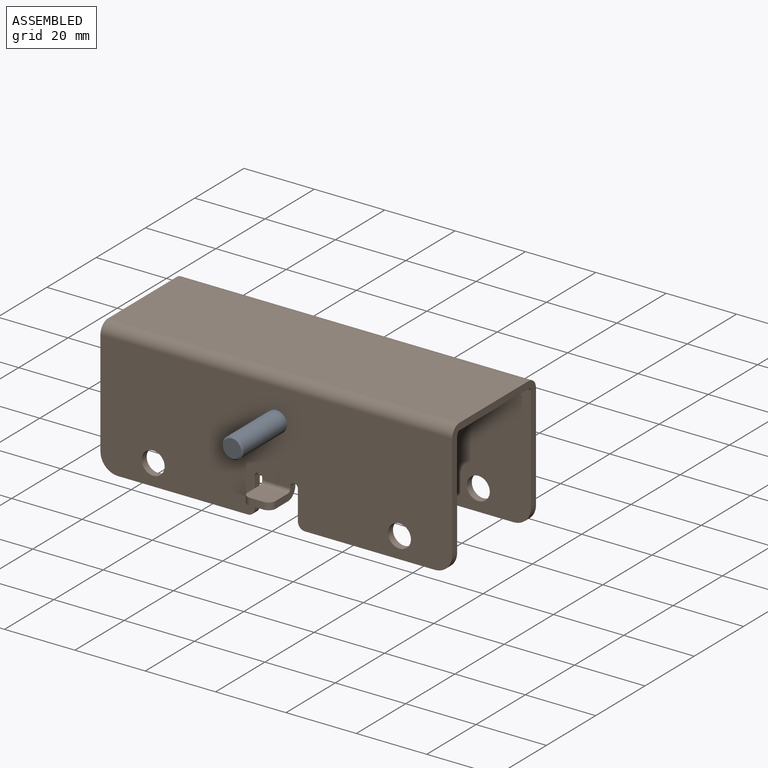
[diagram: assembled view]
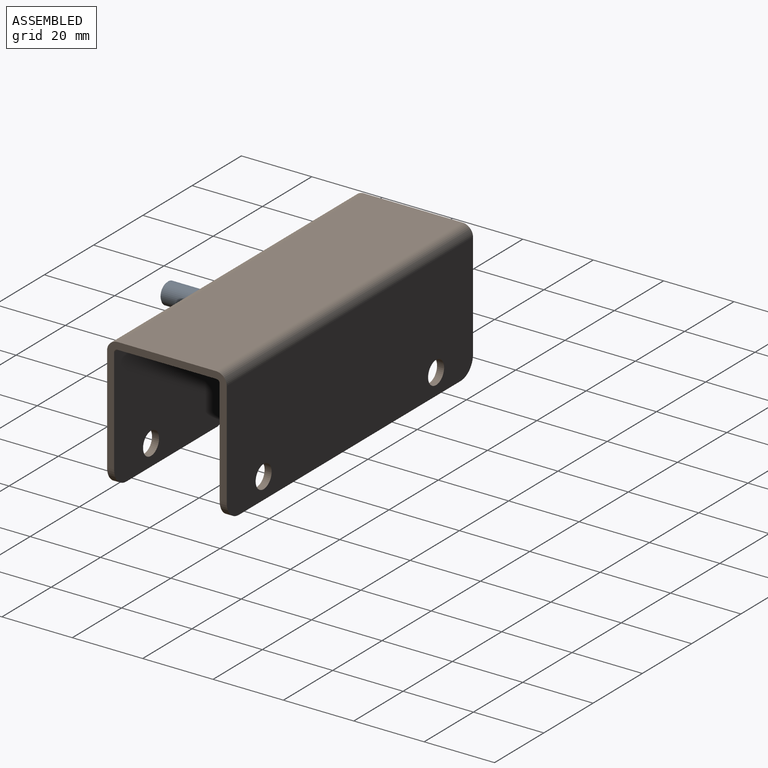
[diagram: assembled view, second angle]
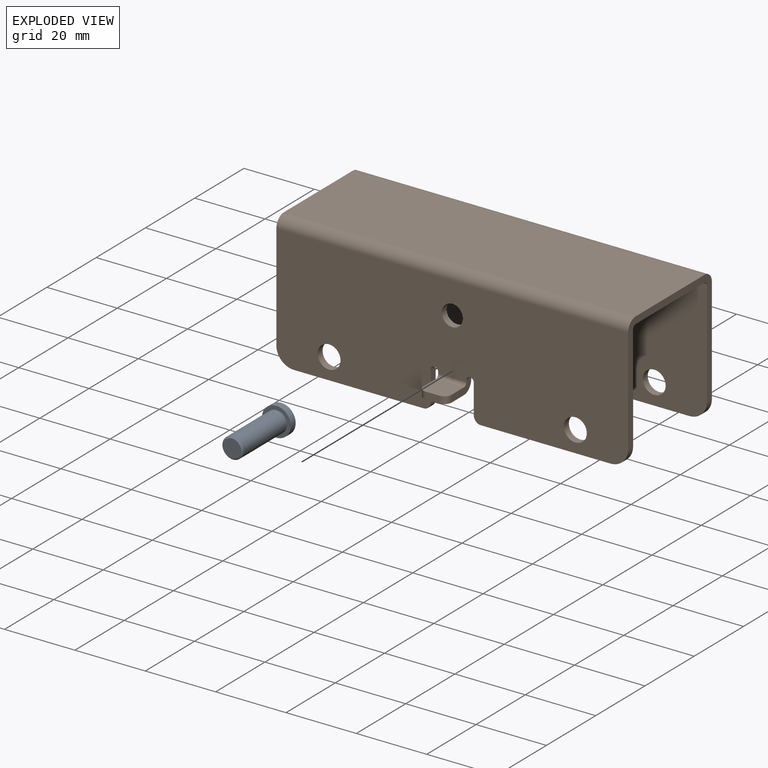
[diagram: exploded view]
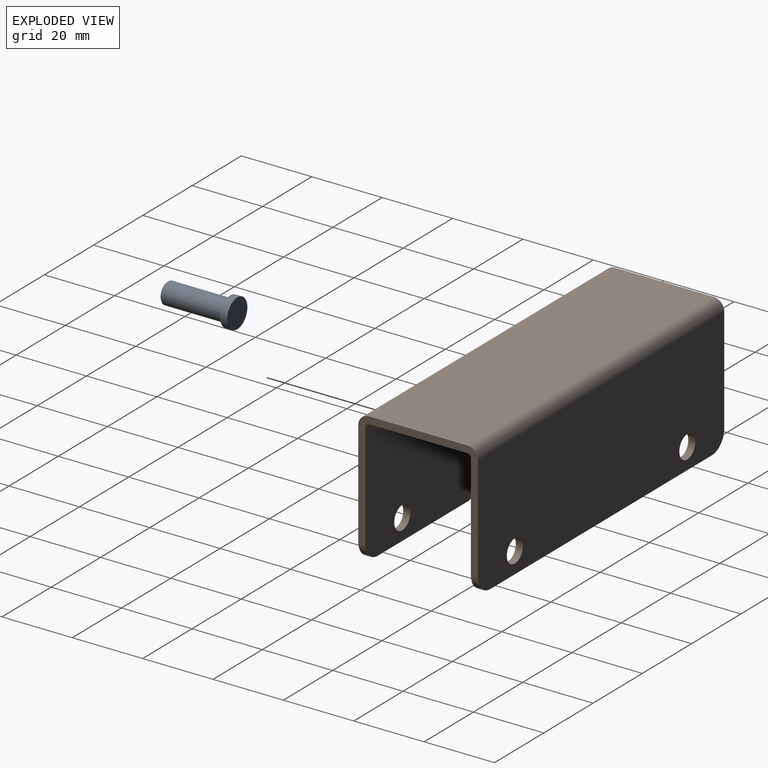
[diagram: exploded view, second angle]
ASSEMBLY  parts=2 mates=2
PART A: 6 faces, bbox 8.2x8.2x20 mm
  f0: plane 5.2x5.2mm, normal (0,0,-1), area 21.2mm2, adj f5
  f1: plane 8.2x8.2mm, normal (0,0,1), area 52.8mm2, adj f2
  f2: cylinder r=4.1mm len=8.2mm, axis (0,0,-1), area 51.5mm2, adj f1,f3
  f3: plane 8.2x8.2mm, normal (0,0,-1), area 24.5mm2, adj f2,f4
  f4: cylinder r=3mm len=17.59mm, axis (0,0,-1), area 331.5mm2, adj f3,f5
  f5: cone r=2.6mm half-angle=44deg, axis (0,0,1), area 10.1mm2, adj f0,f4
PART B: 51 faces, bbox 100x42x38 mm
  f0: plane 100x35mm, normal (0,1,0), area 3265mm2, adj f2,f3,f4,f5,f6,f7,f8,f9
  f1: plane 100x35mm, normal (0,-1,0), area 3265mm2, adj f2,f3,f4,f5,f6,f7,f8,f9
  f2: plane 36.88x2mm, normal (0,0,-1), area 73.8mm2, adj f0,f1,f12,f14
  f3: plane 30x2mm, normal (-1,0,0), area 60mm2, adj f0,f1,f14,f37
  f4: plane 30x2mm, normal (1,0,0), area 60mm2, adj f0,f1,f13,f36
  f5: plane 36.88x2mm, normal (0,0,-1), area 73.8mm2, adj f0,f1,f6,f13
  f6: cylinder r=2mm len=2mm, axis (0,1,0), area 6.3mm2, adj f0,f1,f5,f7
  f7: plane 8.44x2mm, normal (-1,0,0), area 16.9mm2, adj f0,f1,f6,f18
  f8: plane 8.44x2mm, normal (1,0,0), area 16.9mm2, adj f0,f1,f12,f15
  f9: cylinder r=3mm len=6mm, axis (0,1,0), area 37.7mm2, adj f0,f1
  f10: cylinder r=3.25mm len=6.5mm, axis (0,1,0), area 40.8mm2, adj f0,f1
  f11: cylinder r=3.25mm len=6.5mm, axis (0,1,0), area 40.8mm2, adj f0,f1
  f12: cylinder r=2mm len=2mm, axis (0,1,0), area 6.3mm2, adj f0,f1,f2,f8
  f13: cylinder r=5mm len=5mm, axis (0,1,0), area 15.7mm2, adj f0,f1,f4,f5
  f14: cylinder r=5mm len=5mm, axis (0,-1,0), area 15.7mm2, adj f0,f1,f2,f3
  f15: cylinder r=1.06mm len=2.13mm, axis (0,-1,0), area 6.7mm2, adj f0,f1,f8,f16
  f16: plane 2x0.44mm, normal (-1,0,0), area 0.9mm2, adj f0,f1,f15,f47
  f17: plane 2x0.44mm, normal (1,0,0), area 0.9mm2, adj f0,f1,f18,f48
  f18: cylinder r=1.06mm len=2.13mm, axis (0,-1,0), area 6.7mm2, adj f0,f1,f7,f17
  f19: plane 28x2mm, normal (-1,0,0), area 56mm2, adj f21,f22,f33,f37
  f20: plane 28x2mm, normal (1,0,0), area 56mm2, adj f21,f22,f32,f36
  f21: plane 100x28mm, normal (0,0,-1), area 2800mm2, adj f19,f20,f35,f39
  f22: plane 100x28mm, normal (0,0,1), area 2800mm2, adj f19,f20,f34,f38
  f23: plane 30x2mm, normal (-1,0,0), area 60mm2, adj f28,f29,f30,f33
  f24: plane 90x2mm, normal (0,0,-1), area 180mm2, adj f28,f29,f30,f31
  f25: plane 30x2mm, normal (1,0,0), area 60mm2, adj f28,f29,f31,f32
  f26: cylinder r=3.25mm len=6.5mm, axis (0,-1,0), area 40.8mm2, adj f28,f29
  f27: cylinder r=3.25mm len=6.5mm, axis (0,-1,0), area 40.8mm2, adj f28,f29
  f28: plane 100x35mm, normal (0,-1,0), area 3422.9mm2, adj f23,f24,f25,f26,f27,f30,f31,f35
  f29: plane 100x35mm, normal (0,1,0), area 3422.9mm2, adj f23,f24,f25,f26,f27,f30,f31,f34
  f30: cylinder r=5mm len=5mm, axis (0,-1,0), area 15.7mm2, adj f23,f24,f28,f29
  f31: cylinder r=5mm len=5mm, axis (0,1,0), area 15.7mm2, adj f24,f25,f28,f29
  f32: plane 3x3mm, normal (1,0,0), area 6.3mm2, adj f20,f25,f34,f35
  f33: plane 3x3mm, normal (-1,0,0), area 6.3mm2, adj f19,f23,f34,f35
  f34: cylinder r=3mm len=100mm, axis (1,0,0), area 471.2mm2, adj f22,f29,f32,f33
  f35: cylinder r=1mm len=100mm, axis (1,0,0), area 157.1mm2, adj f21,f28,f32,f33
  f36: plane 3x3mm, normal (1,0,0), area 6.3mm2, adj f4,f20,f38,f39
  f37: plane 3x3mm, normal (-1,0,0), area 6.3mm2, adj f3,f19,f38,f39
  f38: cylinder r=3mm len=100mm, axis (1,0,0), area 471.2mm2, adj f1,f22,f36,f37
  f39: cylinder r=1mm len=100mm, axis (1,0,0), area 157.1mm2, adj f0,f21,f36,f37
  f40: plane 4x2mm, normal (0,-1,0), area 8mm2, adj f43,f44,f45,f46
  f41: plane 5x2mm, normal (-1,0,0), area 10mm2, adj f43,f44,f46,f47
  f42: plane 5x2mm, normal (1,0,0), area 10mm2, adj f43,f44,f45,f48
  f43: plane 8x7mm, normal (0,0,-1), area 54.3mm2, adj f40,f41,f42,f45,f46,f49
  f44: plane 8x7mm, normal (0,0,1), area 54.3mm2, adj f40,f41,f42,f45,f46,f50
  f45: cylinder r=2mm len=2mm, axis (0,0,-1), area 6.3mm2, adj f40,f42,f43,f44
  f46: cylinder r=2mm len=2mm, axis (0,0,-1), area 6.3mm2, adj f40,f41,f43,f44
  f47: plane 3x3mm, normal (-1,0,0), area 6.3mm2, adj f16,f41,f49,f50
  f48: plane 3x3mm, normal (1,0,0), area 6.3mm2, adj f17,f42,f49,f50
  f49: cylinder r=3mm len=8mm, axis (-1,0,0), area 37.7mm2, adj f0,f43,f47,f48
  f50: cylinder r=1mm len=8mm, axis (-1,0,0), area 12.6mm2, adj f1,f44,f47,f48
PLACE A rot(axis=(-1,0,0),90deg) t=(0.42,-16.83,9.08)mm
PLACE B t=(0.42,-1.83,-16.92)mm
MATE planar A.f2 <-> B.f9  axis (0,1,0) through (0.42,-16.83,9.08)mm
MATE cylindrical A.f2 <-> B.f9  axis (0,-1,0) through (0.42,-18.83,9.08)mm
